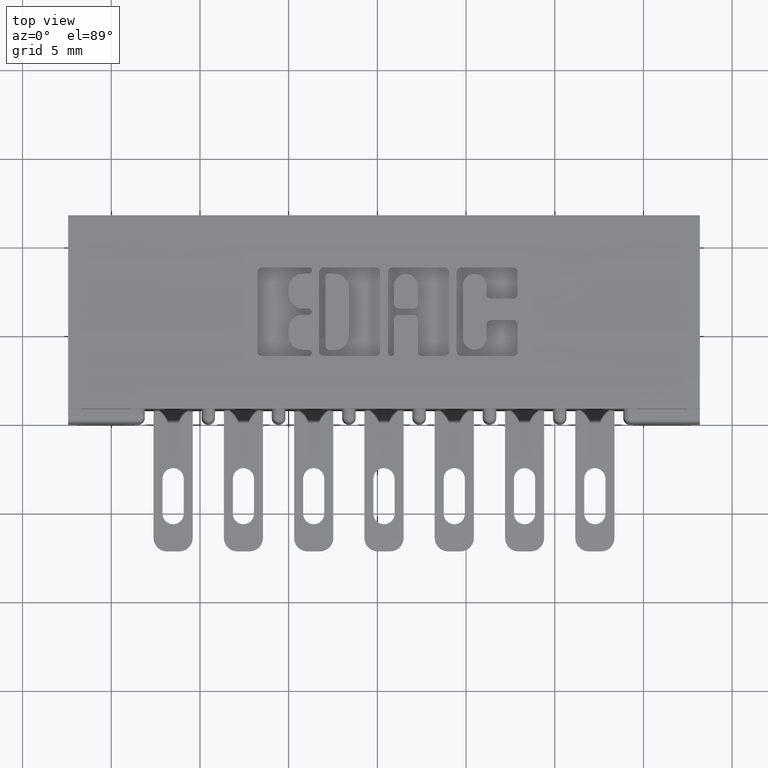
[diagram: clean part render]
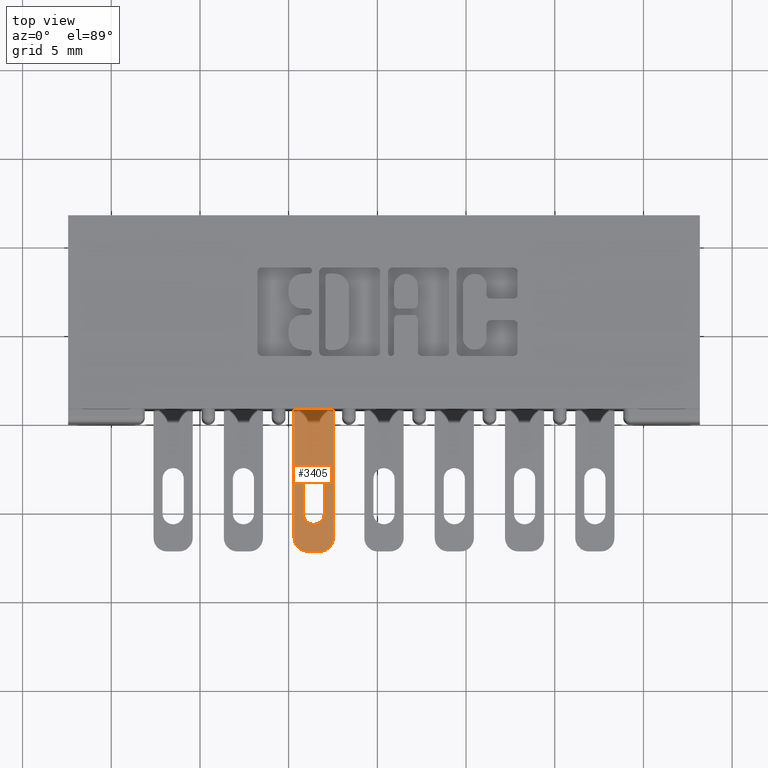
[diagram: same view with one face highlighted and labeled with its STEP entity id]
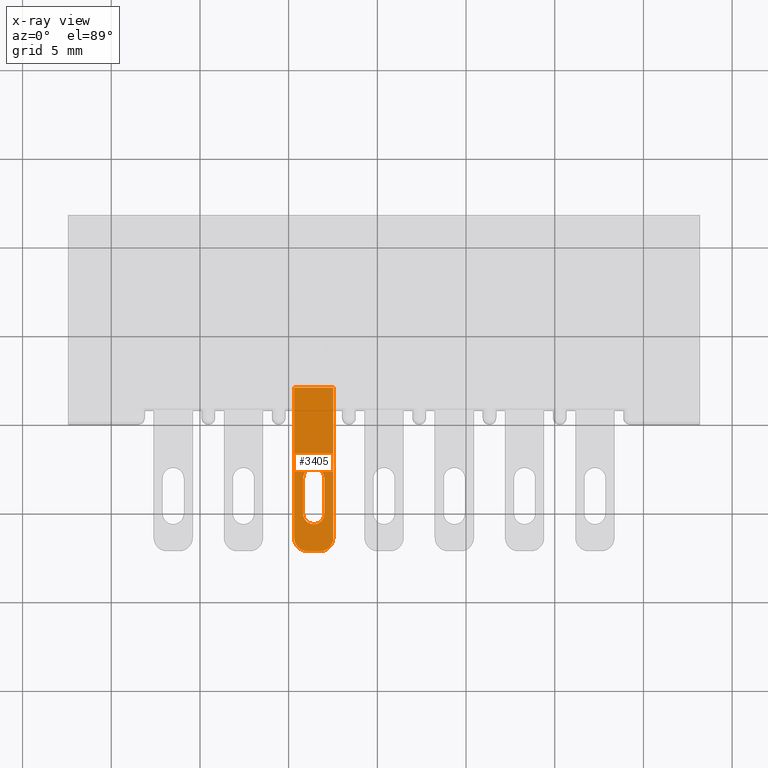
[diagram: x-ray of the same camera — body ghosted, the highlighted face saturated]
A machine part, top view. The second image highlights one B-rep face of the part: STEP entity #3405.
The next image is the same camera in x-ray: the body ghosted, the highlighted face saturated — about 0% of this face is hidden behind the body in this view.
In plain terms, the highlighted planar face has unit normal (-0, -0, -1).
Its self-contained STEP definition (entity closure, byte-faithful):
#12 = EDGE_CURVE ( 'NONE', #657, #6767, #3397, .T. ) ;
#105 = EDGE_CURVE ( 'NONE', #2861, #6889, #3075, .T. ) ;
#122 = EDGE_CURVE ( 'NONE', #145, #8526, #3017, .T. ) ;
#125 = EDGE_CURVE ( 'NONE', #5954, #2861, #3030, .T. ) ;
#145 = VERTEX_POINT ( 'NONE', #10557 ) ;
#174 = EDGE_CURVE ( 'NONE', #3340, #6889, #2870, .T. ) ;
#190 = EDGE_CURVE ( 'NONE', #6630, #657, #2705, .T. ) ;
#236 = CARTESIAN_POINT ( 'NONE',  ( -0.007500000000373022500, -0.2014999999999999800, 0.02350000000000044800 ) ) ;
#421 = EDGE_CURVE ( 'NONE', #2264, #6630, #2043, .T. ) ;
#598 = CARTESIAN_POINT ( 'NONE',  ( -0.007499999999917349700, -0.3329999999999999600, 0.04350000000000078100 ) ) ;
#657 = VERTEX_POINT ( 'NONE', #236 ) ;
#706 = EDGE_CURVE ( 'NONE', #6767, #2264, #818, .T. ) ;
#758 = ORIENTED_EDGE ( 'NONE', *, *, #190, .T. ) ;
#818 = CIRCLE ( 'NONE', #6874, 0.02350000000000000400 ) ;
#915 = EDGE_CURVE ( 'NONE', #3340, #8526, #6404, .T. ) ;
#1128 = CARTESIAN_POINT ( 'NONE',  ( -0.007499999999769284100, -0.3629999999999999300, -0.01350000000000027900 ) ) ;
#2025 = VECTOR ( 'NONE', #6859, 39.37007874015748100 ) ;
#2043 = LINE ( 'NONE', #2295, #2025 ) ;
#2264 = VERTEX_POINT ( 'NONE', #9290 ) ;
#2295 = CARTESIAN_POINT ( 'NONE',  ( -0.007500000000373022500, -0.2014999999999999800, -0.02349999999999935500 ) ) ;
#2467 = DIRECTION ( 'NONE',  ( -1.000000000000000000, -0.0000000000000000000, -1.551405903681916400E-027 ) ) ;
#2481 = DIRECTION ( 'NONE',  ( -1.551405903681916400E-027, -4.319416009178338500E-029, -1.000000000000000000 ) ) ;
#2517 = DIRECTION ( 'NONE',  ( 0.0000000000000000000, 0.0000000000000000000, -1.000000000000000000 ) ) ;
#2592 = DIRECTION ( 'NONE',  ( 0.0000000000000000000, 0.0000000000000000000, -1.000000000000000000 ) ) ;
#2705 = CIRCLE ( 'NONE', #5749, 0.02350000000000000400 ) ;
#2737 = VECTOR ( 'NONE', #10480, 39.37007874015748100 ) ;
#2800 = EDGE_CURVE ( 'NONE', #145, #5954, #8043, .T. ) ;
#2861 = VERTEX_POINT ( 'NONE', #9130 ) ;
#2870 = LINE ( 'NONE', #6803, #2737 ) ;
#2965 = VECTOR ( 'NONE', #8381, 39.37007874015748100 ) ;
#3017 = LINE ( 'NONE', #7507, #3041 ) ;
#3030 = LINE ( 'NONE', #7225, #2965 ) ;
#3041 = VECTOR ( 'NONE', #4584, 39.37007874015748100 ) ;
#3052 = VECTOR ( 'NONE', #2481, 39.37007874015748100 ) ;
#3075 = LINE ( 'NONE', #6662, #3052 ) ;
#3326 = DIRECTION ( 'NONE',  ( 1.000000000000000000, 0.0000000000000000000, 1.551405903681916400E-027 ) ) ;
#3340 = VERTEX_POINT ( 'NONE', #6591 ) ;
#3342 = CARTESIAN_POINT ( 'NONE',  ( -0.007499999999917349700, -0.3329999999999999600, -0.01350000000000027900 ) ) ;
#3344 = VECTOR ( 'NONE', #4247, 39.37007874015748100 ) ;
#3397 = LINE ( 'NONE', #6950, #3344 ) ;
#3405 = ADVANCED_FACE ( 'NONE', ( #10233, #10620 ), #8440, .F. ) ;
#3691 = ORIENTED_EDGE ( 'NONE', *, *, #12, .T. ) ;
#3944 = CARTESIAN_POINT ( 'NONE',  ( -0.007500000000157889000, -0.2794999999999990800, 0.02350000000000044800 ) ) ;
#3985 = ORIENTED_EDGE ( 'NONE', *, *, #421, .T. ) ;
#4205 = CARTESIAN_POINT ( 'NONE',  ( -0.007500000000373022500, -0.2014999999999999800, -0.02349999999999935500 ) ) ;
#4247 = DIRECTION ( 'NONE',  ( 0.0000000000000000000, -1.000000000000000000, -1.094490382077028600E-016 ) ) ;
#4336 = ORIENTED_EDGE ( 'NONE', *, *, #706, .T. ) ;
#4346 = ORIENTED_EDGE ( 'NONE', *, *, #105, .T. ) ;
#4584 = DIRECTION ( 'NONE',  ( -1.551405903681916400E-027, -4.319416009178338500E-029, -1.000000000000000000 ) ) ;
#5231 = DIRECTION ( 'NONE',  ( -1.551405903681916400E-027, -4.319416009178338500E-029, -1.000000000000000000 ) ) ;
#5551 = AXIS2_PLACEMENT_3D ( 'NONE', #8285, #8309, #5231 ) ;
#5608 = EDGE_LOOP ( 'NONE', ( #6247, #8468, #5895, #5844, #5751, #4346 ) ) ;
#5749 = AXIS2_PLACEMENT_3D ( 'NONE', #9645, #3326, #2592 ) ;
#5751 = ORIENTED_EDGE ( 'NONE', *, *, #125, .T. ) ;
#5844 = ORIENTED_EDGE ( 'NONE', *, *, #2800, .T. ) ;
#5895 = ORIENTED_EDGE ( 'NONE', *, *, #122, .F. ) ;
#5954 = VERTEX_POINT ( 'NONE', #598 ) ;
#6247 = ORIENTED_EDGE ( 'NONE', *, *, #174, .F. ) ;
#6375 = CARTESIAN_POINT ( 'NONE',  ( -0.007499999999995071400, 0.0000000000000000000, -0.04349999999999968500 ) ) ;
#6404 = CIRCLE ( 'NONE', #6461, 0.03000000000000000600 ) ;
#6461 = AXIS2_PLACEMENT_3D ( 'NONE', #3342, #2467, #2517 ) ;
#6591 = CARTESIAN_POINT ( 'NONE',  ( -0.007499999999917349700, -0.3329999999999999600, -0.04349999999999968500 ) ) ;
#6630 = VERTEX_POINT ( 'NONE', #4205 ) ;
#6662 = CARTESIAN_POINT ( 'NONE',  ( -0.007499999999995071400, 0.0000000000000000000, -0.04349999999999968500 ) ) ;
#6767 = VERTEX_POINT ( 'NONE', #3944 ) ;
#6803 = CARTESIAN_POINT ( 'NONE',  ( -0.007499999999769284100, -0.3629999999999999300, -0.04349999999999968500 ) ) ;
#6859 = DIRECTION ( 'NONE',  ( 0.0000000000000000000, 1.000000000000000000, 1.094490382077028600E-016 ) ) ;
#6874 = AXIS2_PLACEMENT_3D ( 'NONE', #7866, #7790, #7900 ) ;
#6889 = VERTEX_POINT ( 'NONE', #6375 ) ;
#6950 = CARTESIAN_POINT ( 'NONE',  ( -0.007500000000373022500, -0.2014999999999999800, 0.02350000000000044800 ) ) ;
#7225 = CARTESIAN_POINT ( 'NONE',  ( -0.007499999999769284100, -0.3629999999999999300, 0.04350000000000078100 ) ) ;
#7507 = CARTESIAN_POINT ( 'NONE',  ( -0.007499999999769284100, -0.3629999999999999300, -0.04349999999999968500 ) ) ;
#7790 = DIRECTION ( 'NONE',  ( 1.000000000000000000, 0.0000000000000000000, 1.551405903681916400E-027 ) ) ;
#7866 = CARTESIAN_POINT ( 'NONE',  ( -0.007500000000157889000, -0.2794999999999990800, 0.0000000000000000000 ) ) ;
#7900 = DIRECTION ( 'NONE',  ( 0.0000000000000000000, 0.0000000000000000000, -1.000000000000000000 ) ) ;
#8043 = CIRCLE ( 'NONE', #8298, 0.02999999999999999900 ) ;
#8285 = CARTESIAN_POINT ( 'NONE',  ( -0.007499999999769284100, -0.3629999999999999300, -0.04349999999999968500 ) ) ;
#8298 = AXIS2_PLACEMENT_3D ( 'NONE', #9370, #9027, #9204 ) ;
#8309 = DIRECTION ( 'NONE',  ( 1.000000000000000000, -1.340233499419491700E-055, -1.551405903681916400E-027 ) ) ;
#8381 = DIRECTION ( 'NONE',  ( 0.0000000000000000000, 1.000000000000000000, 4.319416009179066000E-029 ) ) ;
#8440 = PLANE ( 'NONE',  #5551 ) ;
#8468 = ORIENTED_EDGE ( 'NONE', *, *, #915, .T. ) ;
#8526 = VERTEX_POINT ( 'NONE', #1128 ) ;
#9027 = DIRECTION ( 'NONE',  ( -1.000000000000000000, -0.0000000000000000000, -1.551405903681916400E-027 ) ) ;
#9130 = CARTESIAN_POINT ( 'NONE',  ( -0.007500000000075250300, 0.0000000000000000000, 0.04350000000000078100 ) ) ;
#9204 = DIRECTION ( 'NONE',  ( 0.0000000000000000000, 0.0000000000000000000, -1.000000000000000000 ) ) ;
#9290 = CARTESIAN_POINT ( 'NONE',  ( -0.007500000000157889000, -0.2794999999999990800, -0.02349999999999935500 ) ) ;
#9370 = CARTESIAN_POINT ( 'NONE',  ( -0.007499999999917349700, -0.3329999999999999600, 0.01350000000000027900 ) ) ;
#9645 = CARTESIAN_POINT ( 'NONE',  ( -0.007500000000373022500, -0.2014999999999999800, 0.0000000000000000000 ) ) ;
#10160 = EDGE_LOOP ( 'NONE', ( #758, #3691, #4336, #3985 ) ) ;
#10233 = FACE_OUTER_BOUND ( 'NONE', #5608, .T. ) ;
#10480 = DIRECTION ( 'NONE',  ( 0.0000000000000000000, 1.000000000000000000, 4.319416009179066000E-029 ) ) ;
#10557 = CARTESIAN_POINT ( 'NONE',  ( -0.007499999999769284100, -0.3629999999999999300, 0.01350000000000027900 ) ) ;
#10620 = FACE_BOUND ( 'NONE', #10160, .T. ) ;